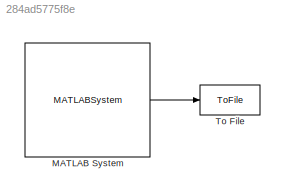
MODEL slx_284ad5775f8e
KIND model
CONFIG AbsTol = auto
CONFIG EnableMultiTasking = off
CONFIG FixedStep = 0.01
CONFIG MaxStep = auto
CONFIG MinStep = auto
CONFIG RelTol = 1e-3
CONFIG SampleTimeConstraint = Unconstrained
CONFIG Solver = ode4
CONFIG SolverName = ode4
CONFIG StartTime = 0.0
CONFIG StopTime = inf
BLOCK [MATLABSystem] MATLAB System
  MaskDisplay = disp('Stream_PS_RCV');\nport_label('output',1,'y');
  MaskType = PhaseSpace_RCV_Master
  PS_SampleRate = 100
  Ports = [0, 1]
  System = PhaseSpace_RCV_Master
BLOCK [ToFile] To File
  Filename = DataLog.mat
  MatrixName = simData
  Ports = [1]
LINE MATLAB System:1 -> To File:1
